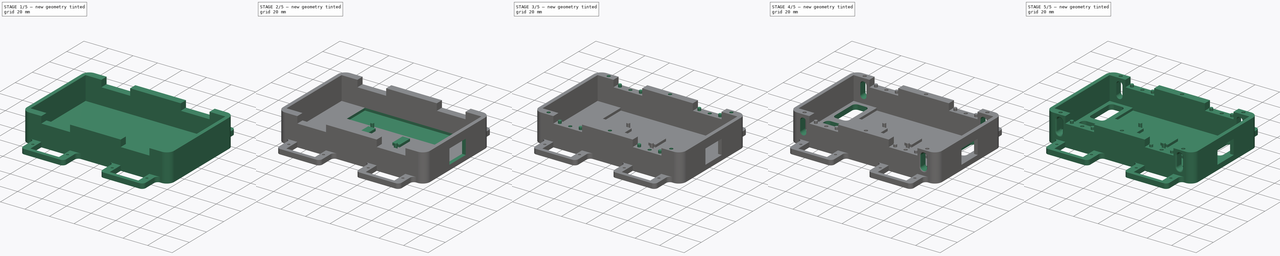
[diagram: build sequence overview — one tinted view per stage of 5, left to right]
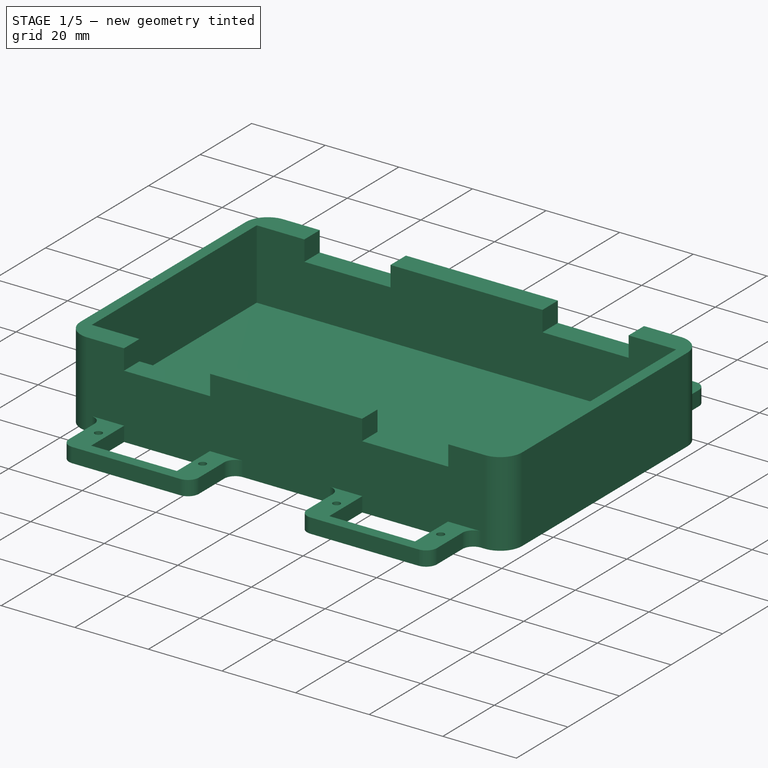
[diagram: stage 1 of 5 — iso view after this stage's code; geometry added in this stage tinted green]
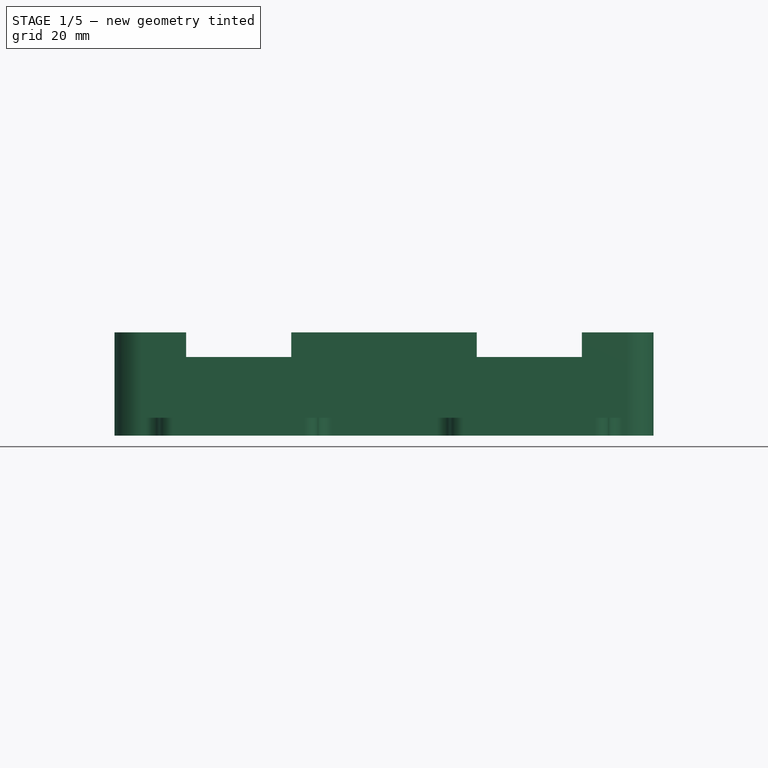
[diagram: stage 1 of 5 — front view after this stage's code; geometry added in this stage tinted green]
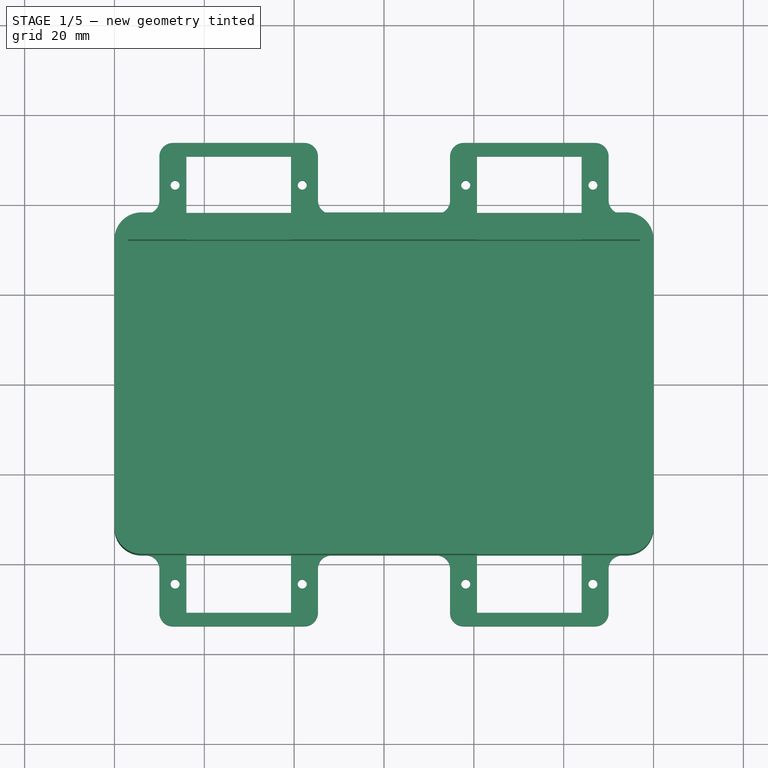
[diagram: stage 1 of 5 — top view after this stage's code; geometry added in this stage tinted green]
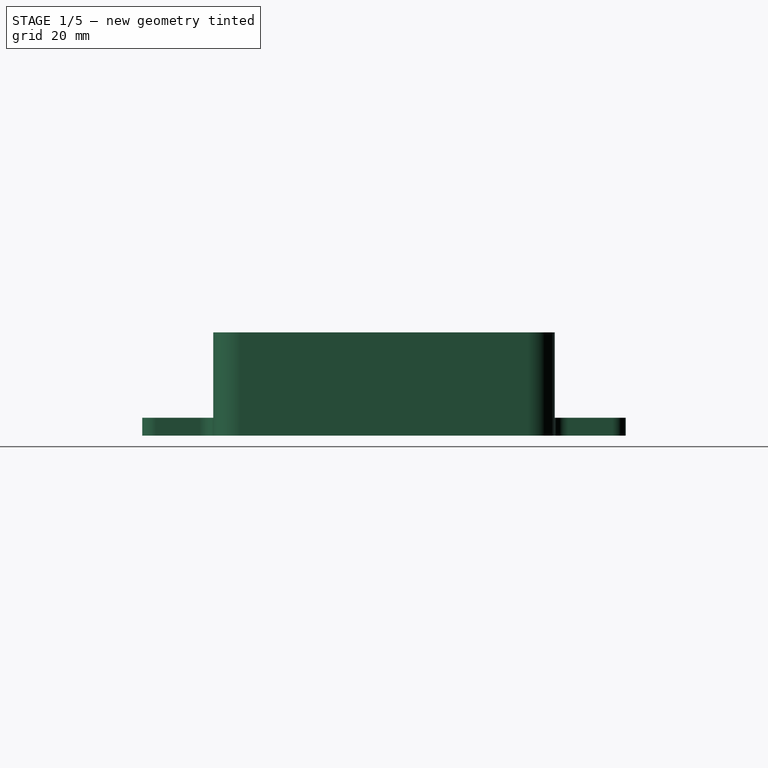
[diagram: stage 1 of 5 — right view after this stage's code; geometry added in this stage tinted green]
FCSTD DOCUMENT  (FreeCAD 0.21R33771 (Git))
Label: Шаси чертеж
License: All rights reserved
LicenseURL: https://en.wikipedia.org/wiki/All_rights_reserved
objects: Sketcher::SketchObject×13, PartDesign::Pocket×8, PartDesign::Pad×5, PartDesign::Fillet×4, PartDesign::Body×1
note: 48 computed .brp shape members not serialized (recipe doc carries the construction recipe); baked Part::Feature solids carry a one-line shape summary decoded from their .brp

FEATURE [Sketcher::SketchObject] Sketch  label="Основа чертеж"
  FullyConstrained = true
  MapMode = 5
  Support = -> [XY_Plane]
  sketch-geometry (64):
    g0: LineSegment StartX=-11.7 StartY=38 StartZ=0 EndX=11.7 EndY=38 EndZ=0
    g1: LineSegment StartX=14.7 StartY=41 StartZ=0 EndX=14.7 EndY=50.8 EndZ=0
    g2: LineSegment StartX=17.7 StartY=53.8 StartZ=0 EndX=47 EndY=53.8 EndZ=0
    g3: LineSegment StartX=50 StartY=50.8 StartZ=0 EndX=50 EndY=41 EndZ=0
    g4: LineSegment StartX=53 StartY=38 StartZ=0 EndX=54 EndY=38 EndZ=0
    g5: LineSegment StartX=60 StartY=32 StartZ=0 EndX=60 EndY=-32 EndZ=0
    g6: LineSegment StartX=54 StartY=-38 StartZ=0 EndX=53 EndY=-38 EndZ=0
    g7: LineSegment StartX=50 StartY=-41 StartZ=0 EndX=50 EndY=-50.8 EndZ=0
    g8: LineSegment StartX=47 StartY=-53.8 StartZ=0 EndX=17.7 EndY=-53.8 EndZ=0
    g9: LineSegment StartX=14.7 StartY=-50.8 StartZ=0 EndX=14.7 EndY=-41 EndZ=0
    g10: LineSegment StartX=11.7 StartY=-38 StartZ=0 EndX=-11.7 EndY=-38 EndZ=0
    g11: LineSegment StartX=-14.7 StartY=-41 StartZ=0 EndX=-14.7 EndY=-50.8 EndZ=0
    g12: LineSegment StartX=-17.7 StartY=-53.8 StartZ=0 EndX=-47 EndY=-53.8 EndZ=0
    g13: LineSegment StartX=-50 StartY=-50.8 StartZ=0 EndX=-50 EndY=-41 EndZ=0
    g14: LineSegment StartX=-53 StartY=-38 StartZ=0 EndX=-54 EndY=-38 EndZ=0
    g15: LineSegment StartX=-60 StartY=-32 StartZ=0 EndX=-60 EndY=32 EndZ=0
    g16: LineSegment StartX=-54 StartY=38 StartZ=0 EndX=-53 EndY=38 EndZ=0
    g17: LineSegment StartX=-50 StartY=41 StartZ=0 EndX=-50 EndY=50.8 EndZ=0
    g18: LineSegment StartX=-47 StartY=53.8 StartZ=0 EndX=-17.7 EndY=53.8 EndZ=0
    g19: LineSegment StartX=-14.7 StartY=50.8 StartZ=0 EndX=-14.7 EndY=41 EndZ=0
    g20: ArcOfCircle CenterX=-54 CenterY=32 CenterZ=0 NormalX=0 NormalY=0 NormalZ=1 AngleXU=0 Radius=6 StartAngle=1.5708 EndAngle=3.14159
    g21: ArcOfCircle CenterX=-54 CenterY=-32 CenterZ=0 NormalX=0 NormalY=0 NormalZ=1 AngleXU=0 Radius=6 StartAngle=3.14159 EndAngle=4.71239
    g22: ArcOfCircle CenterX=54 CenterY=32 CenterZ=0 NormalX=0 NormalY=0 NormalZ=1 AngleXU=0 Radius=6 StartAngle=0 EndAngle=1.5708
    g23: ArcOfCircle CenterX=54 CenterY=-32 CenterZ=0 NormalX=0 NormalY=0 NormalZ=1 AngleXU=0 Radius=6 StartAngle=4.71239 EndAngle=6.28319
    g24: ArcOfCircle CenterX=-47 CenterY=-50.8 CenterZ=0 NormalX=0 NormalY=0 NormalZ=1 AngleXU=0 Radius=3 StartAngle=3.14159 EndAngle=4.71239
    g25: ArcOfCircle CenterX=-17.7 CenterY=-50.8 CenterZ=0 NormalX=0 NormalY=0 NormalZ=1 AngleXU=0 Radius=3 StartAngle=4.71239 EndAngle=6.28319
    g26: ArcOfCircle CenterX=17.7 CenterY=-50.8 CenterZ=0 NormalX=0 NormalY=0 NormalZ=1 AngleXU=0 Radius=3 StartAngle=3.14159 EndAngle=4.71239
    g27: ArcOfCircle CenterX=47 CenterY=-50.8 CenterZ=0 NormalX=0 NormalY=0 NormalZ=1 AngleXU=0 Radius=3 StartAngle=4.71239 EndAngle=6.28319
    g28: ArcOfCircle CenterX=11.7 CenterY=-41 CenterZ=0 NormalX=0 NormalY=0 NormalZ=1 AngleXU=0 Radius=3 StartAngle=2e-16 EndAngle=1.5708
    g29: ArcOfCircle CenterX=-11.7 CenterY=-41 CenterZ=0 NormalX=0 NormalY=0 NormalZ=1 AngleXU=0 Radius=3 StartAngle=1.5708 EndAngle=3.14159
    g30: ArcOfCircle CenterX=-11.7 CenterY=41 CenterZ=0 NormalX=0 NormalY=0 NormalZ=1 AngleXU=0 Radius=3 StartAngle=3.14159 EndAngle=4.71239
    g31: ArcOfCircle CenterX=11.7 CenterY=41 CenterZ=0 NormalX=0 NormalY=0 NormalZ=1 AngleXU=0 Radius=3 StartAngle=4.71239 EndAngle=6.28319
    g32: ArcOfCircle CenterX=-47 CenterY=50.8 CenterZ=0 NormalX=0 NormalY=0 NormalZ=1 AngleXU=0 Radius=3 StartAngle=1.5708 EndAngle=3.14159
    g33: ArcOfCircle CenterX=-17.7 CenterY=50.8 CenterZ=0 NormalX=0 NormalY=0 NormalZ=1 AngleXU=0 Radius=3 StartAngle=-9e-16 EndAngle=1.5708
    g34: ArcOfCircle CenterX=17.7 CenterY=50.8 CenterZ=0 NormalX=0 NormalY=0 NormalZ=1 AngleXU=0 Radius=3 StartAngle=1.5708 EndAngle=3.14159
    g35: ArcOfCircle CenterX=47 CenterY=50.8 CenterZ=0 NormalX=0 NormalY=0 NormalZ=1 AngleXU=0 Radius=3 StartAngle=0 EndAngle=1.5708
    g36: ArcOfCircle CenterX=53 CenterY=-41 CenterZ=0 NormalX=0 NormalY=0 NormalZ=1 AngleXU=0 Radius=3 StartAngle=1.5708 EndAngle=3.14159
    g37: ArcOfCircle CenterX=53 CenterY=41 CenterZ=0 NormalX=0 NormalY=0 NormalZ=1 AngleXU=0 Radius=3 StartAngle=3.14159 EndAngle=4.71239
    g38: ArcOfCircle CenterX=-53 CenterY=41 CenterZ=0 NormalX=0 NormalY=0 NormalZ=1 AngleXU=0 Radius=3 StartAngle=4.71239 EndAngle=6.28319
    g39: ArcOfCircle CenterX=-53 CenterY=-41 CenterZ=0 NormalX=0 NormalY=0 NormalZ=1 AngleXU=0 Radius=3 StartAngle=0 EndAngle=1.5708
    g40: LineSegment StartX=-44 StartY=50.8 StartZ=0 EndX=-20.7 EndY=50.8 EndZ=0
    g41: LineSegment StartX=-20.7 StartY=50.8 StartZ=0 EndX=-20.7 EndY=38 EndZ=0
    g42: LineSegment StartX=-20.7 StartY=38 StartZ=0 EndX=-44 EndY=38 EndZ=0
    g43: LineSegment StartX=-44 StartY=38 StartZ=0 EndX=-44 EndY=50.8 EndZ=0
    g44: Circle CenterX=-46.5 CenterY=44.4 CenterZ=0 NormalX=0 NormalY=0 NormalZ=1 AngleXU=0 Radius=1
    g45: Circle CenterX=-18.2 CenterY=44.4 CenterZ=0 NormalX=0 NormalY=0 NormalZ=1 AngleXU=0 Radius=1
    g46: LineSegment StartX=20.7 StartY=50.8 StartZ=0 EndX=44 EndY=50.8 EndZ=0
    g47: LineSegment StartX=44 StartY=50.8 StartZ=0 EndX=44 EndY=38 EndZ=0
    g48: LineSegment StartX=44 StartY=38 StartZ=0 EndX=20.7 EndY=38 EndZ=0
    g49: LineSegment StartX=20.7 StartY=38 StartZ=0 EndX=20.7 EndY=50.8 EndZ=0
    g50: Circle CenterX=18.2 CenterY=44.4 CenterZ=0 NormalX=0 NormalY=0 NormalZ=1 AngleXU=0 Radius=1
    g51: Circle CenterX=46.5 CenterY=44.4 CenterZ=0 NormalX=0 NormalY=0 NormalZ=1 AngleXU=0 Radius=1
    g52: LineSegment StartX=20.7 StartY=-38 StartZ=0 EndX=44 EndY=-38 EndZ=0
    g53: LineSegment StartX=44 StartY=-38 StartZ=0 EndX=44 EndY=-50.8 EndZ=0
    g54: LineSegment StartX=44 StartY=-50.8 StartZ=0 EndX=20.7 EndY=-50.8 EndZ=0
    g55: LineSegment StartX=20.7 StartY=-50.8 StartZ=0 EndX=20.7 EndY=-38 EndZ=0
    g56: LineSegment StartX=-44 StartY=-38 StartZ=0 EndX=-20.7 EndY=-38 EndZ=0
    g57: LineSegment StartX=-20.7 StartY=-38 StartZ=0 EndX=-20.7 EndY=-50.8 EndZ=0
    g58: LineSegment StartX=-20.7 StartY=-50.8 StartZ=0 EndX=-44 EndY=-50.8 EndZ=0
    g59: LineSegment StartX=-44 StartY=-50.8 StartZ=0 EndX=-44 EndY=-38 EndZ=0
    g60: Circle CenterX=-46.5 CenterY=-44.4 CenterZ=0 NormalX=0 NormalY=0 NormalZ=1 AngleXU=0 Radius=1
    g61: Circle CenterX=-18.2 CenterY=-44.4 CenterZ=0 NormalX=0 NormalY=0 NormalZ=1 AngleXU=0 Radius=1
    g62: Circle CenterX=18.2 CenterY=-44.4 CenterZ=0 NormalX=0 NormalY=0 NormalZ=1 AngleXU=0 Radius=1
    g63: Circle CenterX=46.5 CenterY=-44.4 CenterZ=0 NormalX=0 NormalY=0 NormalZ=1 AngleXU=0 Radius=1
  constraints (172):
    c: Horizontal(g0)
    c: Vertical(g1)
    c: Horizontal(g2)
    c: Vertical(g5)
    c: Horizontal(g6)
    c: Vertical(g7)
    c: Horizontal(g8)
    c: Vertical(g9)
    c: Horizontal(g10)
    c: Vertical(g11)
    c: Horizontal(g12)
    c: Vertical(g13)
    c: Horizontal(g14)
    c: Vertical(g15)
    c: Horizontal(g16)
    c: Vertical(g17)
    c: Horizontal(g18)
    c: Vertical(g19)
    c: Vertical(g3)
    c: Tangent(g15,g20) = 1.5708
    c: Tangent(g16,g20) = 1.5708
    c: Tangent(g14,g21) = 1.5708
    c: Tangent(g15,g21) = 1.5708
    c: Tangent(g4,g22) = 1.5708
    c: Tangent(g5,g22) = 1.5708
    c: Tangent(g6,g23) = 1.5708
    c: Tangent(g5,g23) = 1.5708
    c: Tangent(g13,g24) = 1.5708
    c: Tangent(g12,g24) = 1.5708
    c: Tangent(g12,g25) = 1.5708
    c: Tangent(g11,g25) = 1.5708
    c: Tangent(g9,g26) = 1.5708
    c: Tangent(g8,g26) = 1.5708
    c: Tangent(g8,g27) = 1.5708
    c: Tangent(g7,g27) = 1.5708
    c: Tangent(g10,g28) = -1.5708
    c: Tangent(g9,g28) = -1.5708
    c: Tangent(g10,g29) = -1.5708
    c: Tangent(g11,g29) = -1.5708
    c: Tangent(g19,g30) = -1.5708
    c: Tangent(g0,g30) = -1.5708
    c: Tangent(g0,g31) = -1.5708
    c: Tangent(g1,g31) = -1.5708
    c: Tangent(g17,g32) = 1.5708
    c: Tangent(g18,g32) = 1.5708
    c: Tangent(g18,g33) = 1.5708
    c: Tangent(g19,g33) = 1.5708
    c: Tangent(g1,g34) = 1.5708
    c: Tangent(g2,g34) = 1.5708
    c: Tangent(g3,g35) = 1.5708
    c: Tangent(g2,g35) = 1.5708
    c: Equal(g20,g21)
    c: Equal(g21,g23)
    c: Equal(g23,g22)
    c: Radius(g22) = 6
    c: Tangent(g6,g36) = -1.5708
    c: Tangent(g7,g36) = -1.5708
    c: Tangent(g4,g37) = -1.5708
    c: Tangent(g3,g37) = -1.5708
    c: Tangent(g16,g38) = -1.5708
    c: Tangent(g17,g38) = -1.5708
    c: Tangent(g14,g39) = -1.5708
    c: Tangent(g13,g39) = -1.5708
    c: Equal(g38,g32)
    c: Equal(g32,g33)
    c: Equal(g33,g30)
    c: Equal(g30,g31)
    c: Equal(g31,g34)
    c: Equal(g34,g35)
    c: Equal(g35,g37)
    c: Equal(g37,g36)
    c: Equal(g36,g27)
    c: Equal(g27,g26)
    c: Equal(g26,g28)
    c: Equal(g28,g29)
    c: Equal(g29,g25)
    c: Equal(g25,g24)
    c: Equal(g24,g39)
    c: Radius(g38) = 3
    c: DistanceY(g10,g0) = 76
    c: DistanceX(g15,g-1) = 60
    c: DistanceX(g17,g-1) = 50
    c: DistanceY(g-1,g16) = 38
    c: DistanceY(g-1,g0) = 38
    c: Coincident(g40,g41)
    c: Coincident(g41,g42)
    c: Coincident(g42,g43)
    c: Coincident(g43,g40)
    c: Horizontal(g40)
    c: Horizontal(g42)
    c: Vertical(g41)
    c: Vertical(g43)
    c: DistanceX(g40,g40) = 23.3
    c: DistanceY(g41,g41) = 12.8
    c: DistanceX(g17,g42) = 6
    c: DistanceX(g41,g19) = 6
    c: DistanceY(g40,g18) = 3
    c: DistanceY(g42,g44) = 6.4
    c: DistanceY(g41,g45) = 6.4
    c: DistanceX(g41,g45) = 2.5
    c: DistanceX(g44,g42) = 2.5
    c: Equal(g44,g45)
    c: Radius(g44) = 1
    c: DistanceY(g0,g41) = 0
    c: DistanceX(g-1,g3) = 50
    c: Coincident(g46,g47)
    c: Coincident(g47,g48)
    c: Coincident(g48,g49)
    c: Coincident(g49,g46)
    c: Horizontal(g46)
    c: Horizontal(g48)
    c: Vertical(g47)
    c: Vertical(g49)
    c: DistanceX(g48,g48) = 23.3
    c: DistanceY(g-1,g4) = 38
    c: DistanceY(g49,g49) = 12.8
    c: DistanceY(g0,g48) = 0
    c: DistanceX(g1,g48) = 6
    c: DistanceX(g47,g3) = 6
    c: DistanceY(g46,g2) = 3
    c: Equal(g50,g51)
    c: Radius(g50) = 1
    c: DistanceY(g48,g50) = 6.4
    c: DistanceX(g50,g48) = 2.5
    c: DistanceX(g47,g51) = 2.5
    c: DistanceY(g47,g51) = 6.4
    c: Horizontal(g4)
    c: DistanceY(g6,g4) = 76
    c: DistanceX(g-1,g5) = 60
    c: Coincident(g52,g53)
    c: Coincident(g53,g54)
    c: Coincident(g54,g55)
    c: Coincident(g55,g52)
    c: Horizontal(g52)
    c: Horizontal(g54)
    c: Vertical(g53)
    c: Vertical(g55)
    c: Coincident(g56,g57)
    c: Coincident(g57,g58)
    c: Coincident(g58,g59)
    c: Coincident(g59,g56)
    c: Horizontal(g56)
    c: Horizontal(g58)
    c: Vertical(g57)
    c: Vertical(g59)
    c: Equal(g56,g52)
    c: Equal(g52,g48)
    c: Equal(g53,g57)
    c: Equal(g57,g47)
    c: DistanceY(g56,g10) = 0
    c: DistanceY(g52,g6) = 0
    c: DistanceX(g13,g-1) = 50
    c: DistanceX(g13,g56) = 6
    c: DistanceX(g56,g11) = 6
    c: DistanceY(g14,g16) = 76
    c: DistanceY(g12,g58) = 3
    c: DistanceX(g9,g52) = 6
    c: DistanceX(g52,g7) = 6
    c: DistanceY(g8,g54) = 3
    c: DistanceX(g-1,g7) = 50
    c: Equal(g60,g61)
    c: Equal(g60,g62)
    c: Equal(g60,g63)
    c: Diameter(g60) = 2
    c: DistanceY(g60,g56) = 6.4
    c: DistanceY(g61,g56) = 6.4
    c: DistanceX(g56,g61) = 2.5
    c: DistanceX(g60,g56) = 2.5
    c: DistanceY(g62,g52) = 6.4
    c: DistanceX(g62,g52) = 2.5
    c: DistanceY(g63,g52) = 6.4
    c: DistanceX(g52,g63) = 2.5
FEATURE [PartDesign::Pad] Pad  label="Основа"
  Direction = (0,0,1)
  Length = 4
  Length2 = 10
  Profile = -> Sketch
  ReferenceAxis = -> Sketch [N_Axis]
  Type = 0
FEATURE [Sketcher::SketchObject] Sketch001  label="Борд чертеж"
  FullyConstrained = true
  MapMode = 5
  Placement = pos=(0,0,4) rot=(0,0,1;0rad)
  Support = -> [Pad]
  sketch-geometry (14):
    g0: LineSegment StartX=60 StartY=-32 StartZ=0 EndX=60 EndY=32 EndZ=0
    g1: LineSegment StartX=54 StartY=38 StartZ=0 EndX=-54 EndY=38 EndZ=0
    g2: LineSegment StartX=-60 StartY=32 StartZ=0 EndX=-60 EndY=-32 EndZ=0
    g3: LineSegment StartX=-54 StartY=-38 StartZ=0 EndX=54 EndY=-38 EndZ=0
    g4: GeomPoint X=0 Y=0 Z=0
    g5: ArcOfCircle CenterX=54 CenterY=32 CenterZ=0 NormalX=0 NormalY=0 NormalZ=1 AngleXU=0 Radius=6 StartAngle=0 EndAngle=1.5708
    g6: ArcOfCircle CenterX=-54 CenterY=32 CenterZ=0 NormalX=0 NormalY=0 NormalZ=1 AngleXU=0 Radius=6 StartAngle=1.5708 EndAngle=3.14159
    g7: ArcOfCircle CenterX=54 CenterY=-32 CenterZ=0 NormalX=0 NormalY=0 NormalZ=1 AngleXU=0 Radius=6 StartAngle=4.71239 EndAngle=6.28319
    g8: ArcOfCircle CenterX=-54 CenterY=-32 CenterZ=0 NormalX=0 NormalY=0 NormalZ=1 AngleXU=0 Radius=6 StartAngle=3.14159 EndAngle=4.71239
    g9: LineSegment StartX=57 StartY=-32 StartZ=0 EndX=57 EndY=32 EndZ=0
    g10: LineSegment StartX=57 StartY=32 StartZ=0 EndX=-57 EndY=32 EndZ=0
    g11: LineSegment StartX=-57 StartY=32 StartZ=0 EndX=-57 EndY=-32 EndZ=0
    g12: LineSegment StartX=-57 StartY=-32 StartZ=0 EndX=57 EndY=-32 EndZ=0
    g13: GeomPoint X=0 Y=0 Z=0
  constraints (33):
    c: Horizontal(g1)
    c: Horizontal(g3)
    c: Vertical(g0)
    c: Vertical(g2)
    c: Coincident(g4,g-1)
    c: Tangent(g0,g5) = -1.5708
    c: Tangent(g1,g5) = -1.5708
    c: Tangent(g1,g6) = -1.5708
    c: Tangent(g2,g6) = -1.5708
    c: Tangent(g3,g7) = -1.5708
    c: Tangent(g0,g7) = -1.5708
    c: Tangent(g3,g8) = -1.5708
    c: Tangent(g2,g8) = -1.5708
    c: Equal(g8,g6)
    c: Equal(g8,g5)
    c: Equal(g8,g7)
    c: Diameter(g8) = 12
    c: DistanceX(g-1,g0) = 60
    c: DistanceX(g2,g-1) = 60
    c: DistanceY(g-1,g1) = 38
    c: DistanceY(g3,g-1) = 38
    c: Coincident(g9,g10)
    c: Coincident(g10,g11)
    c: Coincident(g11,g12)
    c: Coincident(g12,g9)
    c: Horizontal(g10)
    c: Horizontal(g12)
    c: Vertical(g9)
    c: Vertical(g11)
    c: Symmetric(g10,g9,g13)
    c: Coincident(g13,g4)
    c: DistanceY(g9,g1) = 6
    c: DistanceX(g9,g0) = 3
FEATURE [PartDesign::Pad] Pad001  label="Борд"
  BaseFeature = -> Pad
  Direction = (0,0,1)
  Length = 19
  Length2 = 10
  Profile = -> Sketch001
  ReferenceAxis = -> Sketch001 [N_Axis]
  Type = 0
FEATURE [Sketcher::SketchObject] Sketch002
  FullyConstrained = true
  MapMode = 5
  Placement = pos=(0,0,23) rot=(0,0,1;0rad)
  Support = -> [Pad001]
  sketch-geometry (16):
    g0: LineSegment StartX=-44.05 StartY=38 StartZ=0 EndX=-20.65 EndY=38 EndZ=0
    g1: LineSegment StartX=-20.65 StartY=38 StartZ=0 EndX=-20.65 EndY=32 EndZ=0
    g2: LineSegment StartX=-20.65 StartY=32 StartZ=0 EndX=-44.05 EndY=32 EndZ=0
    g3: LineSegment StartX=-44.05 StartY=32 StartZ=0 EndX=-44.05 EndY=38 EndZ=0
    g4: LineSegment StartX=20.65 StartY=38 StartZ=0 EndX=44.05 EndY=38 EndZ=0
    g5: LineSegment StartX=44.05 StartY=38 StartZ=0 EndX=44.05 EndY=32 EndZ=0
    g6: LineSegment StartX=44.05 StartY=32 StartZ=0 EndX=20.65 EndY=32 EndZ=0
    g7: LineSegment StartX=20.65 StartY=32 StartZ=0 EndX=20.65 EndY=38 EndZ=0
    g8: LineSegment StartX=-44.05 StartY=-32 StartZ=0 EndX=-20.65 EndY=-32 EndZ=0
    g9: LineSegment StartX=-20.65 StartY=-32 StartZ=0 EndX=-20.65 EndY=-38 EndZ=0
    g10: LineSegment StartX=-20.65 StartY=-38 StartZ=0 EndX=-44.05 EndY=-38 EndZ=0
    g11: LineSegment StartX=-44.05 StartY=-38 StartZ=0 EndX=-44.05 EndY=-32 EndZ=0
    g12: LineSegment StartX=20.65 StartY=-32 StartZ=0 EndX=44.05 EndY=-32 EndZ=0
    g13: LineSegment StartX=44.05 StartY=-32 StartZ=0 EndX=44.05 EndY=-38 EndZ=0
    g14: LineSegment StartX=44.05 StartY=-38 StartZ=0 EndX=20.65 EndY=-38 EndZ=0
    g15: LineSegment StartX=20.65 StartY=-38 StartZ=0 EndX=20.65 EndY=-32 EndZ=0
  constraints (46):
    c: Coincident(g0,g1)
    c: Coincident(g1,g2)
    c: Coincident(g2,g3)
    c: Coincident(g3,g0)
    c: Horizontal(g0)
    c: Horizontal(g2)
    c: Vertical(g1)
    c: Vertical(g3)
    c: Coincident(g4,g5)
    c: Coincident(g5,g6)
    c: Coincident(g6,g7)
    c: Coincident(g7,g4)
    c: Horizontal(g4)
    c: Horizontal(g6)
    c: Vertical(g5)
    c: Vertical(g7)
    c: Coincident(g8,g9)
    c: Coincident(g9,g10)
    c: Coincident(g10,g11)
    c: Coincident(g11,g8)
    c: Horizontal(g8)
    c: Horizontal(g10)
    c: Vertical(g9)
    c: Vertical(g11)
    c: Coincident(g12,g13)
    c: Coincident(g13,g14)
    c: Coincident(g14,g15)
    c: Coincident(g15,g12)
    c: Horizontal(g12)
    c: Horizontal(g14)
    c: Vertical(g13)
    c: Vertical(g15)
    c: Equal(g1,g7)
    c: Equal(g7,g11)
    c: Equal(g11,g15)
    c: DistanceY(g3,g3) = 6
    c: Equal(g0,g4)
    c: Equal(g4,g12)
    c: Equal(g12,g8)
    c: DistanceX(g0,g0) = 23.4
    c: DistanceY(g-1,g0) = 38
    c: DistanceY(g-1,g4) = 38
    c: Symmetric(g8,g1,g-1)
    c: Symmetric(g4,g13,g-1)
    c: DistanceX(g2,g-1) = 44.05
    c: DistanceX(g-1,g5) = 44.05
FEATURE [PartDesign::Pocket] Pocket  label="легла за капачките"
  BaseFeature = -> Pad001
  Direction = (0,0,-1)
  Length = 5.5
  Length2 = 5
  Profile = -> Sketch002
  ReferenceAxis = -> Sketch002 [N_Axis]
  Type = 0
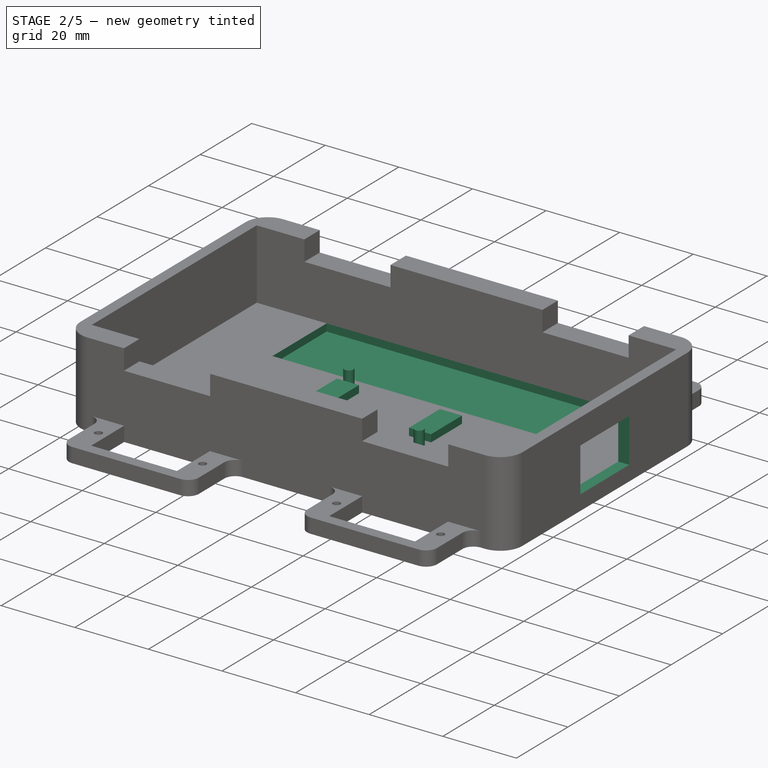
[diagram: stage 2 of 5 — iso view after this stage's code; geometry added in this stage tinted green]
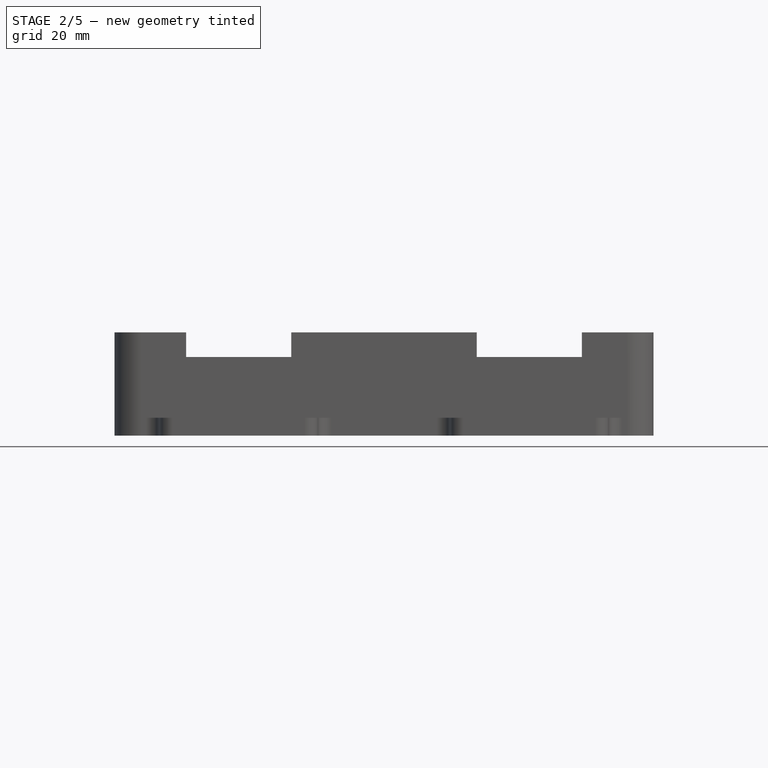
[diagram: stage 2 of 5 — front view after this stage's code; geometry added in this stage tinted green]
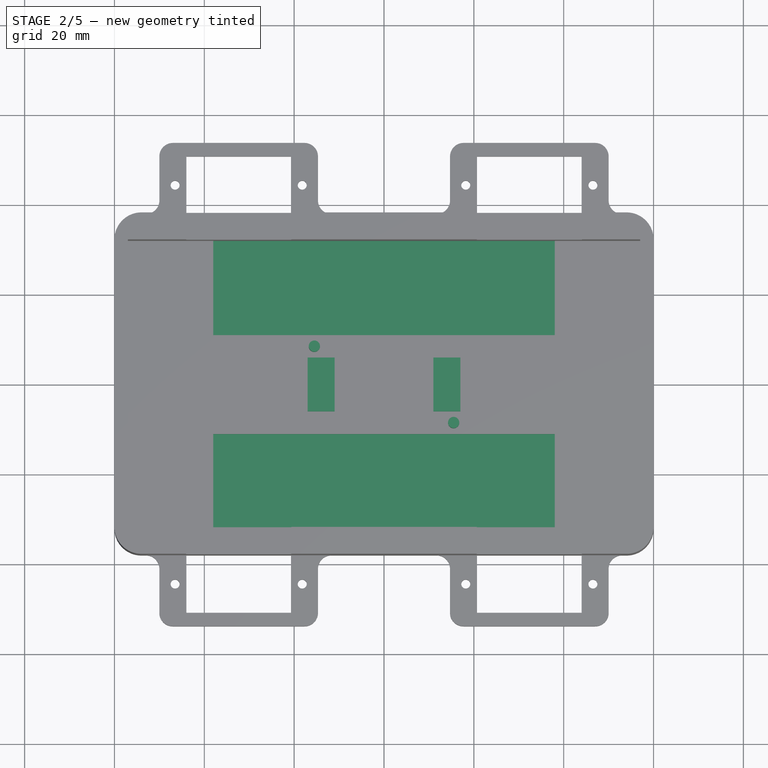
[diagram: stage 2 of 5 — top view after this stage's code; geometry added in this stage tinted green]
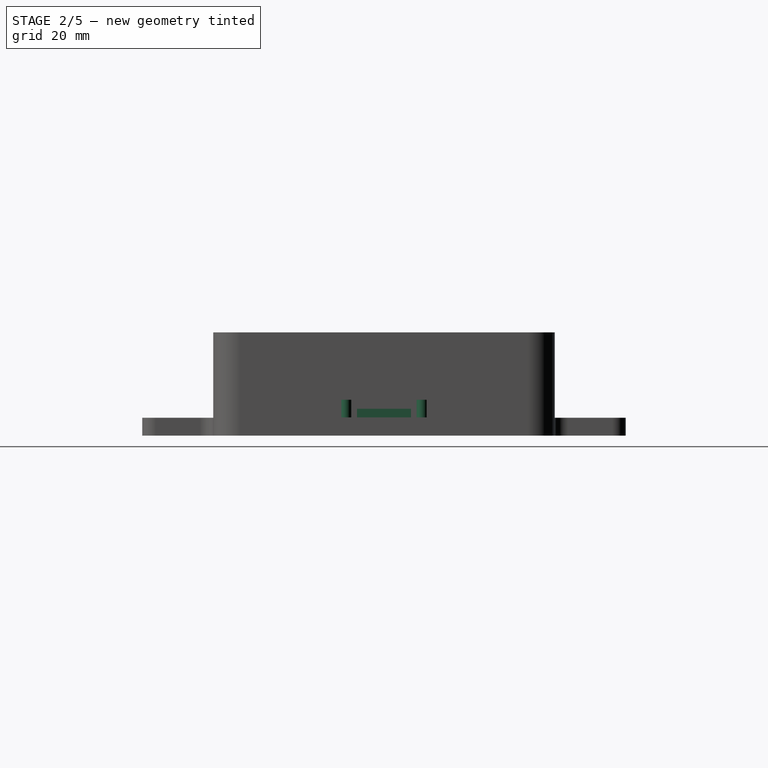
[diagram: stage 2 of 5 — right view after this stage's code; geometry added in this stage tinted green]
FEATURE [Sketcher::SketchObject] Sketch003
  FullyConstrained = true
  MapMode = 5
  Placement = pos=(0,0,4) rot=(0,0,1;0rad)
  Support = -> [Pocket]
  sketch-geometry (10):
    g0: LineSegment StartX=38 StartY=32 StartZ=0 EndX=38 EndY=11 EndZ=0
    g1: LineSegment StartX=38 StartY=11 StartZ=0 EndX=-38 EndY=11 EndZ=0
    g2: LineSegment StartX=-38 StartY=11 StartZ=0 EndX=-38 EndY=32 EndZ=0
    g3: LineSegment StartX=-38 StartY=32 StartZ=0 EndX=38 EndY=32 EndZ=0
    g4: GeomPoint X=0 Y=21.5 Z=0
    g5: LineSegment StartX=38 StartY=-11 StartZ=0 EndX=38 EndY=-32 EndZ=0
    g6: LineSegment StartX=38 StartY=-32 StartZ=0 EndX=-38 EndY=-32 EndZ=0
    g7: LineSegment StartX=-38 StartY=-32 StartZ=0 EndX=-38 EndY=-11 EndZ=0
    g8: LineSegment StartX=-38 StartY=-11 StartZ=0 EndX=38 EndY=-11 EndZ=0
    g9: GeomPoint X=0 Y=-21.5 Z=0
  constraints (26):
    c: Coincident(g0,g1)
    c: Coincident(g1,g2)
    c: Coincident(g2,g3)
    c: Coincident(g3,g0)
    c: Horizontal(g1)
    c: Horizontal(g3)
    c: Vertical(g0)
    c: Vertical(g2)
    c: Symmetric(g1,g0,g4)
    c: PointOnObject(g4,g-2)
    c: Coincident(g5,g6)
    c: Coincident(g6,g7)
    c: Coincident(g7,g8)
    c: Coincident(g8,g5)
    c: Horizontal(g6)
    c: Horizontal(g8)
    c: Vertical(g5)
    c: Vertical(g7)
    c: Symmetric(g6,g5,g9)
    c: PointOnObject(g9,g-2)
    c: DistanceY(g0,g0) = 21
    c: DistanceX(g1,g1) = 76
    c: Equal(g0,g5)
    c: Equal(g1,g8)
    c: DistanceY(g-1,g0) = 32
    c: DistanceY(g5,g-1) = 32
FEATURE [PartDesign::Pocket] Pocket001  label="легла за батериите"
  BaseFeature = -> Pocket
  Direction = (0,0,-1)
  Length = 2
  Length2 = 5
  Profile = -> Sketch003
  ReferenceAxis = -> Sketch003 [N_Axis]
  Type = 0
FEATURE [Sketcher::SketchObject] Sketch004
  FullyConstrained = true
  MapMode = 5
  Placement = pos=(60,0,0) rot=(0.57735,0.57735,0.57735;2.0944rad)
  Support = -> [Pocket001]
  sketch-geometry (5):
    g0: LineSegment StartX=9.5 StartY=4.07 StartZ=0 EndX=9.5 EndY=16.07 EndZ=0
    g1: LineSegment StartX=9.5 StartY=16.07 StartZ=0 EndX=-9.5 EndY=16.07 EndZ=0
    g2: LineSegment StartX=-9.5 StartY=16.07 StartZ=0 EndX=-9.5 EndY=4.07 EndZ=0
    g3: LineSegment StartX=-9.5 StartY=4.07 StartZ=0 EndX=9.5 EndY=4.07 EndZ=0
    g4: GeomPoint X=0 Y=10.07 Z=0
  constraints (13):
    c: Coincident(g0,g1)
    c: Coincident(g1,g2)
    c: Coincident(g2,g3)
    c: Coincident(g3,g0)
    c: Horizontal(g1)
    c: Horizontal(g3)
    c: Vertical(g0)
    c: Vertical(g2)
    c: Symmetric(g1,g0,g4)
    c: PointOnObject(g4,g-2)
    c: DistanceX(g1,g1) = 19
    c: DistanceY(g2,g2) = 12
    c: DistanceY(g-1,g0) = 4.07
FEATURE [PartDesign::Pocket] Pocket002  label="отвор за ключа"
  BaseFeature = -> Pocket001
  Direction = (-1,0,0)
  Length = 5
  Length2 = 5
  Profile = -> Sketch004
  ReferenceAxis = -> Sketch004 [N_Axis]
  Type = 0
FEATURE [Sketcher::SketchObject] Sketch005
  FullyConstrained = true
  MapMode = 5
  Placement = pos=(0,0,4) rot=(0,0,1;0rad)
  Support = -> [Pocket002]
  sketch-geometry (2):
    g0: Circle CenterX=15.5 CenterY=-8.5 CenterZ=0 NormalX=0 NormalY=0 NormalZ=1 AngleXU=0 Radius=1.25
    g1: Circle CenterX=-15.5 CenterY=8.5 CenterZ=0 NormalX=0 NormalY=0 NormalZ=1 AngleXU=0 Radius=1.25
  constraints (6):
    c: Equal(g0,g1)
    c: Diameter(g0) = 2.5
    c: DistanceX(g1,g-1) = 15.5
    c: DistanceX(g-1,g0) = 15.5
    c: DistanceY(g0,g-1) = 8.5
    c: DistanceY(g-1,g1) = 8.5
FEATURE [PartDesign::Pad] Pad002  label="щифтове за DC-DC преобраувателя"
  BaseFeature = -> Pocket002
  Direction = (0,0,1)
  Length = 4
  Length2 = 10
  Profile = -> Sketch005
  ReferenceAxis = -> Sketch005 [N_Axis]
  Type = 0
FEATURE [Sketcher::SketchObject] Sketch006
  FullyConstrained = true
  MapMode = 5
  Placement = pos=(0,0,4) rot=(0,0,1;0rad)
  Support = -> [Pad002]
  sketch-geometry (10):
    g0: LineSegment StartX=-17 StartY=-6 StartZ=0 EndX=-17 EndY=6 EndZ=0
    g1: LineSegment StartX=-17 StartY=6 StartZ=0 EndX=-11 EndY=6 EndZ=0
    g2: LineSegment StartX=-11 StartY=6 StartZ=0 EndX=-11 EndY=-6 EndZ=0
    g3: LineSegment StartX=-11 StartY=-6 StartZ=0 EndX=-17 EndY=-6 EndZ=0
    g4: GeomPoint X=-14 Y=0 Z=0
    g5: LineSegment StartX=17 StartY=-6 StartZ=0 EndX=17 EndY=6 EndZ=0
    g6: LineSegment StartX=17 StartY=6 StartZ=0 EndX=11 EndY=6 EndZ=0
    g7: LineSegment StartX=11 StartY=6 StartZ=0 EndX=11 EndY=-6 EndZ=0
    g8: LineSegment StartX=11 StartY=-6 StartZ=0 EndX=17 EndY=-6 EndZ=0
    g9: GeomPoint X=14 Y=0 Z=0
  constraints (26):
    c: Coincident(g0,g1)
    c: Coincident(g1,g2)
    c: Coincident(g2,g3)
    c: Coincident(g3,g0)
    c: Horizontal(g1)
    c: Horizontal(g3)
    c: Vertical(g0)
    c: Vertical(g2)
    c: Symmetric(g1,g0,g4)
    c: PointOnObject(g4,g-1)
    c: Coincident(g5,g6)
    c: Coincident(g6,g7)
    c: Coincident(g7,g8)
    c: Coincident(g8,g5)
    c: Horizontal(g6)
    c: Horizontal(g8)
    c: Vertical(g5)
    c: Vertical(g7)
    c: Symmetric(g6,g5,g9)
    c: PointOnObject(g9,g-1)
    c: DistanceY(g2,g2) = 12
    c: DistanceY(g7,g7) = 12
    c: DistanceX(g3,g3) = 6
    c: DistanceX(g8,g8) = 6
    c: DistanceX(g2,g-1) = 11
    c: DistanceX(g-1,g6) = 11
FEATURE [PartDesign::Pad] Pad003  label="опори за DC-DC преобраувателя"
  BaseFeature = -> Pad002
  Direction = (0,0,1)
  Length = 2
  Length2 = 10
  Profile = -> Sketch006
  ReferenceAxis = -> Sketch006 [N_Axis]
  Type = 0
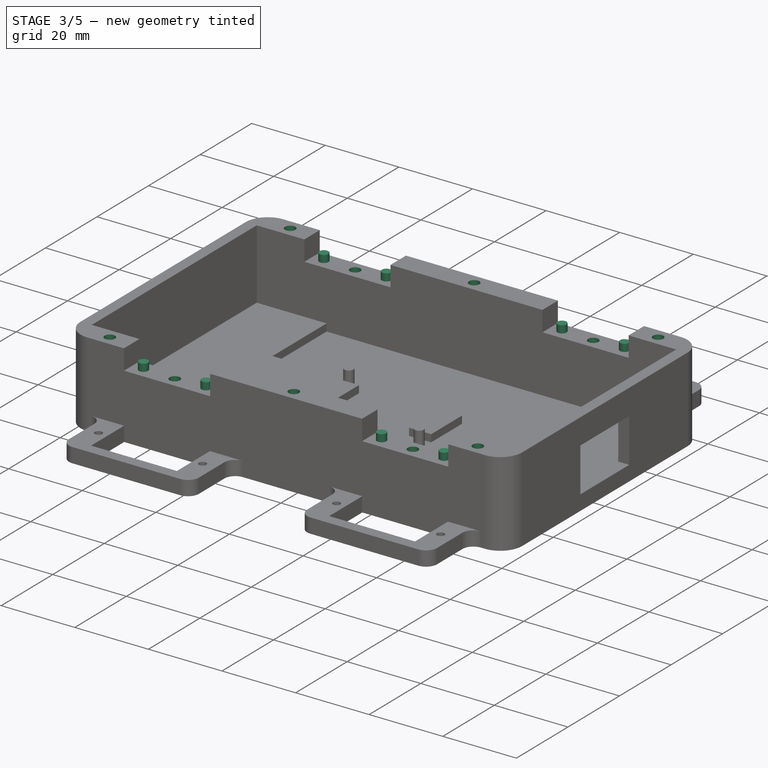
[diagram: stage 3 of 5 — iso view after this stage's code; geometry added in this stage tinted green]
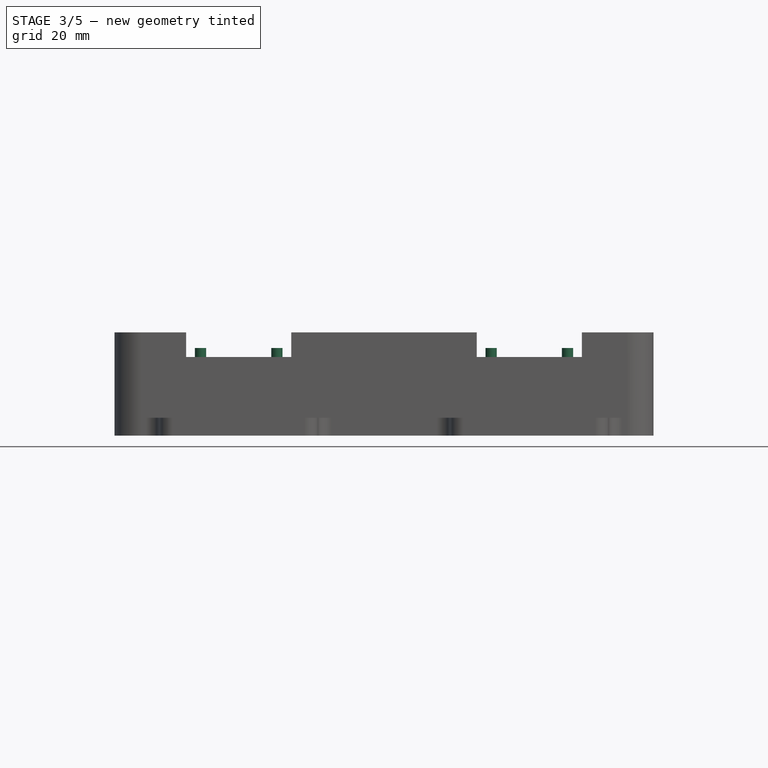
[diagram: stage 3 of 5 — front view after this stage's code; geometry added in this stage tinted green]
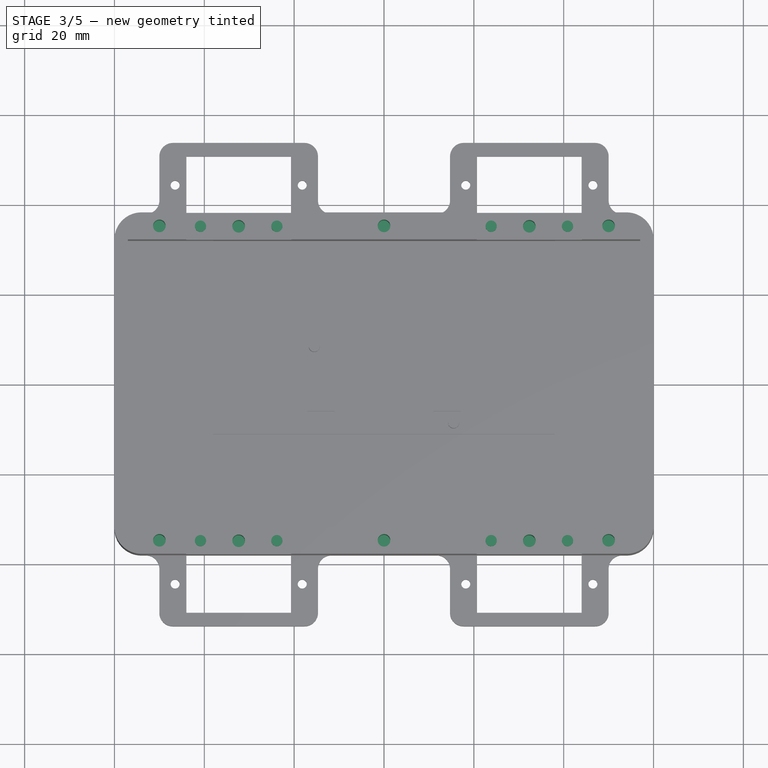
[diagram: stage 3 of 5 — top view after this stage's code; geometry added in this stage tinted green]
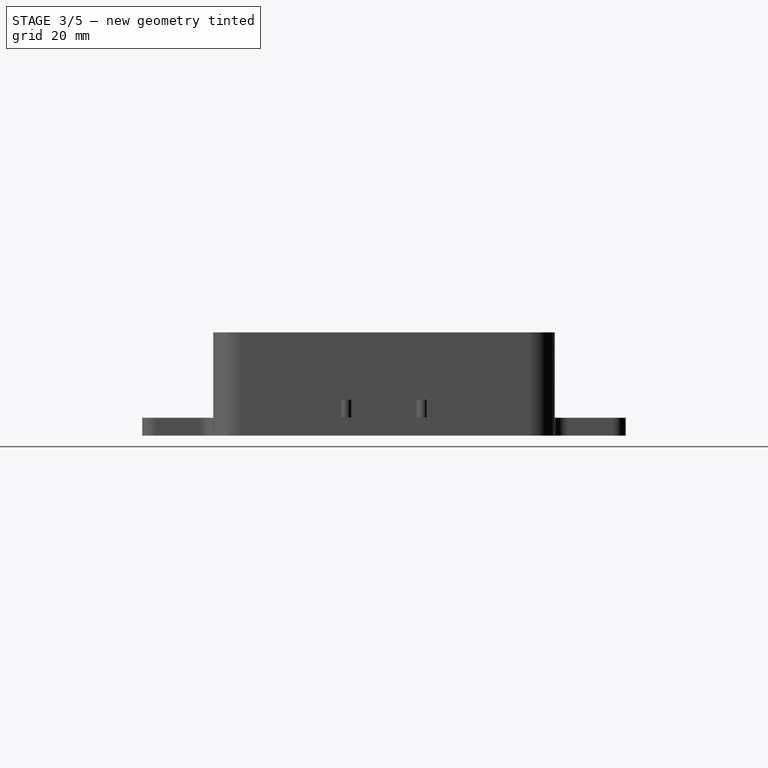
[diagram: stage 3 of 5 — right view after this stage's code; geometry added in this stage tinted green]
FEATURE [Sketcher::SketchObject] Sketch007
  FullyConstrained = true
  MapMode = 5
  Placement = pos=(0,0,17.5) rot=(0,0,1;0rad)
  Support = -> [Pad003]
  sketch-geometry (8):
    g0: Circle CenterX=-40.85 CenterY=35 CenterZ=0 NormalX=0 NormalY=0 NormalZ=1 AngleXU=0 Radius=1.25
    g1: Circle CenterX=-23.85 CenterY=35 CenterZ=0 NormalX=0 NormalY=0 NormalZ=1 AngleXU=0 Radius=1.25
    g2: Circle CenterX=23.85 CenterY=35 CenterZ=0 NormalX=0 NormalY=0 NormalZ=1 AngleXU=0 Radius=1.25
    g3: Circle CenterX=40.85 CenterY=35 CenterZ=0 NormalX=0 NormalY=0 NormalZ=1 AngleXU=0 Radius=1.25
    g4: Circle CenterX=-40.85 CenterY=-35 CenterZ=0 NormalX=0 NormalY=0 NormalZ=1 AngleXU=0 Radius=1.25
    g5: Circle CenterX=-23.85 CenterY=-35 CenterZ=0 NormalX=0 NormalY=0 NormalZ=1 AngleXU=0 Radius=1.25
    g6: Circle CenterX=23.85 CenterY=-35 CenterZ=0 NormalX=0 NormalY=0 NormalZ=1 AngleXU=0 Radius=1.25
    g7: Circle CenterX=40.85 CenterY=-35 CenterZ=0 NormalX=0 NormalY=0 NormalZ=1 AngleXU=0 Radius=1.25
  constraints (18):
    c: DistanceX(g0,g1) = 17
    c: DistanceY(g-1,g1) = 35
    c: Diameter(g1) = 2.5
    c: Equal(g1,g0)
    c: Equal(g0,g4)
    c: Equal(g4,g5)
    c: Equal(g5,g6)
    c: Equal(g6,g7)
    c: Equal(g7,g3)
    c: Equal(g3,g2)
    c: Symmetric(g1,g5,g-1)
    c: Symmetric(g1,g2,g-2)
    c: Symmetric(g2,g6,g-1)
    c: DistanceX(g0,g-1) = 40.85
    c: DistanceY(g-1,g0) = 35
    c: Symmetric(g0,g4,g-1)
    c: Symmetric(g0,g3,g-2)
    c: Symmetric(g4,g7,g-2)
FEATURE [PartDesign::Pad] Pad004  label="щифтове за капачките"
  BaseFeature = -> Pad003
  Direction = (0,0,1)
  Length = 2
  Length2 = 10
  Profile = -> Sketch007
  ReferenceAxis = -> Sketch007 [N_Axis]
  Type = 0
FEATURE [Sketcher::SketchObject] Sketch008
  FullyConstrained = true
  MapMode = 5
  Placement = pos=(0,0,17.5) rot=(0,0,1;0rad)
  Support = -> [Pad004]
  sketch-geometry (4):
    g0: Circle CenterX=-32.35 CenterY=35 CenterZ=0 NormalX=0 NormalY=0 NormalZ=1 AngleXU=0 Radius=1.4
    g1: Circle CenterX=32.35 CenterY=35 CenterZ=0 NormalX=0 NormalY=0 NormalZ=1 AngleXU=0 Radius=1.4
    g2: Circle CenterX=-32.35 CenterY=-35 CenterZ=0 NormalX=0 NormalY=0 NormalZ=1 AngleXU=0 Radius=1.4
    g3: Circle CenterX=32.35 CenterY=-35 CenterZ=0 NormalX=0 NormalY=0 NormalZ=1 AngleXU=0 Radius=1.4
  constraints (9):
    c: Equal(g3,g2)
    c: Equal(g2,g0)
    c: Equal(g0,g1)
    c: Diameter(g1) = 2.8
    c: DistanceX(g0,g-1) = 32.35
    c: DistanceY(g-1,g0) = 35
    c: Symmetric(g0,g1,g-2)
    c: Symmetric(g0,g2,g-1)
    c: Symmetric(g2,g3,g-2)
FEATURE [PartDesign::Pocket] Pocket003
  BaseFeature = -> Pad004
  Direction = (0,0,-1)
  Length = 11
  Length2 = 5
  Profile = -> Sketch008
  ReferenceAxis = -> Sketch008 [N_Axis]
  Type = 0
FEATURE [Sketcher::SketchObject] Sketch009
  FullyConstrained = false
  MapMode = 5
  Placement = pos=(0,0,23) rot=(0,0,1;0rad)
  Support = -> [Pocket003]
  sketch-geometry (6):
    g0: Circle CenterX=-50 CenterY=35 CenterZ=0 NormalX=0 NormalY=0 NormalZ=1 AngleXU=0 Radius=1.4
    g1: Circle CenterX=50 CenterY=35 CenterZ=0 NormalX=0 NormalY=0 NormalZ=1 AngleXU=0 Radius=1.4
    g2: Circle CenterX=-50 CenterY=-35 CenterZ=0 NormalX=0 NormalY=0 NormalZ=1 AngleXU=0 Radius=1.4
    g3: Circle CenterX=50 CenterY=-35 CenterZ=0 NormalX=0 NormalY=0 NormalZ=1 AngleXU=0 Radius=1.4
    g4: Circle CenterX=0 CenterY=-35 CenterZ=0 NormalX=0 NormalY=0 NormalZ=1 AngleXU=0 Radius=1.4
    g5: Circle CenterX=0 CenterY=35 CenterZ=0 NormalX=0 NormalY=0 NormalZ=1 AngleXU=0 Radius=1.4
  constraints (13):
    c: PointOnObject(g4,g-2)
    c: Equal(g2,g4)
    c: Equal(g2,g3)
    c: Equal(g2,g1)
    c: Equal(g2,g5)
    c: Equal(g2,g0)
    c: Diameter(g2) = 2.8
    c: Symmetric(g5,g4,g-1)
    c: Symmetric(g2,g0,g-1)
    c: Symmetric(g3,g2,g-2)
    c: Symmetric(g0,g1,g-2)
    c: DistanceY(g-1,g0) = 35
    c: DistanceX(g0,g-1) = 50
FEATURE [PartDesign::Pocket] Pocket004
  BaseFeature = -> Pocket003
  Direction = (0,0,-1)
  Length = 11
  Length2 = 5
  Profile = -> Sketch009
  ReferenceAxis = -> Sketch009 [N_Axis]
  Type = 0
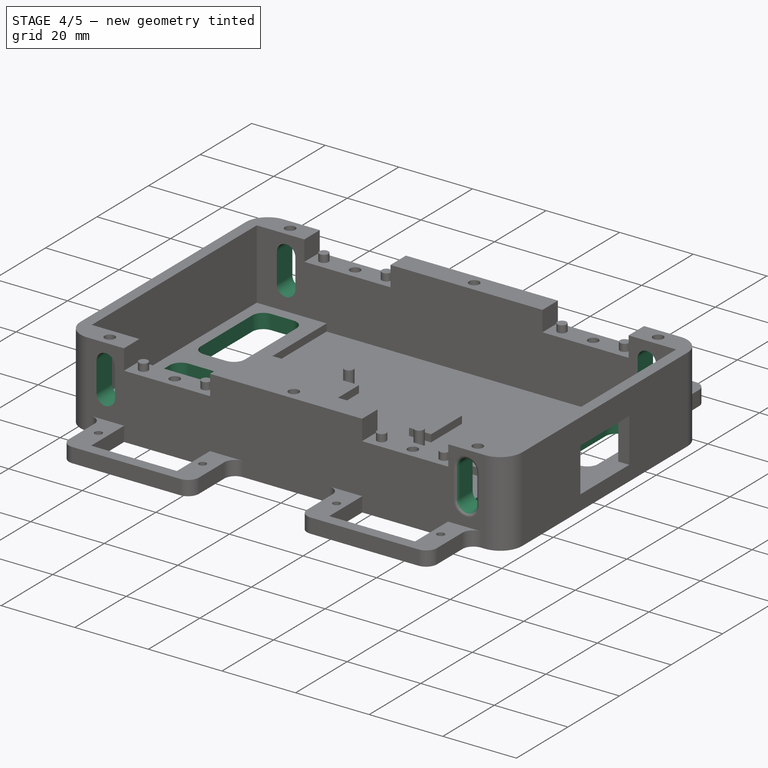
[diagram: stage 4 of 5 — iso view after this stage's code; geometry added in this stage tinted green]
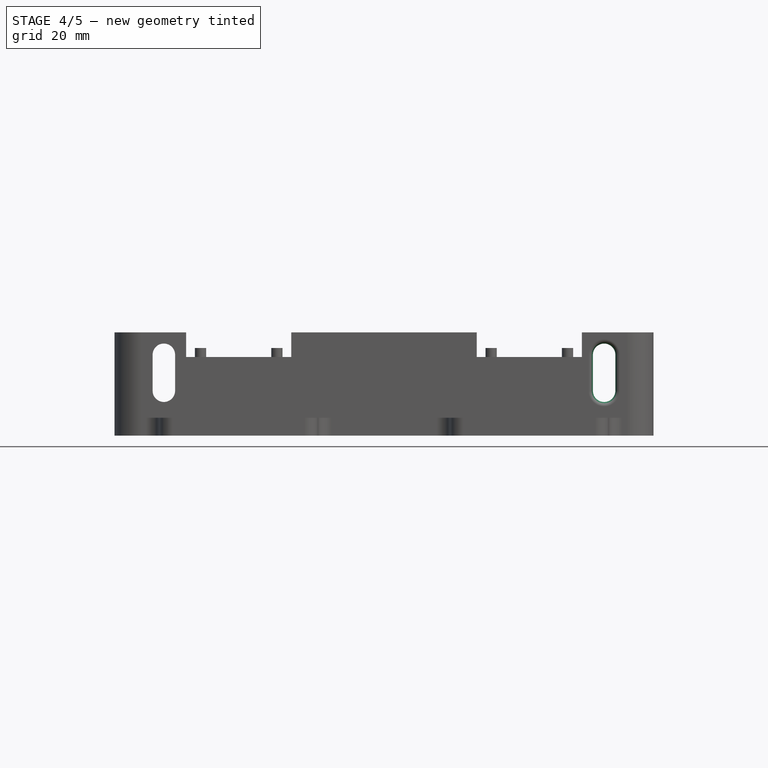
[diagram: stage 4 of 5 — front view after this stage's code; geometry added in this stage tinted green]
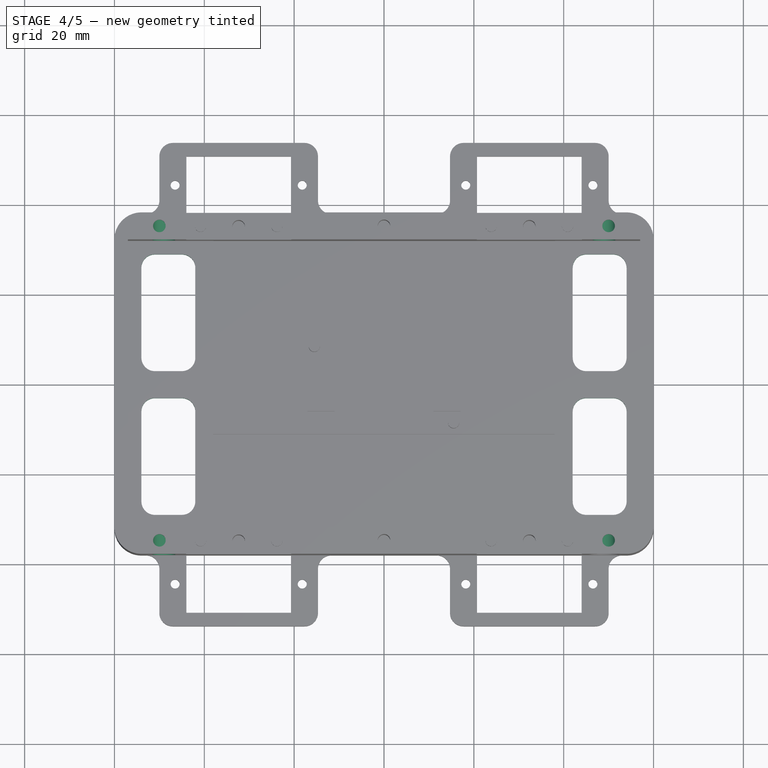
[diagram: stage 4 of 5 — top view after this stage's code; geometry added in this stage tinted green]
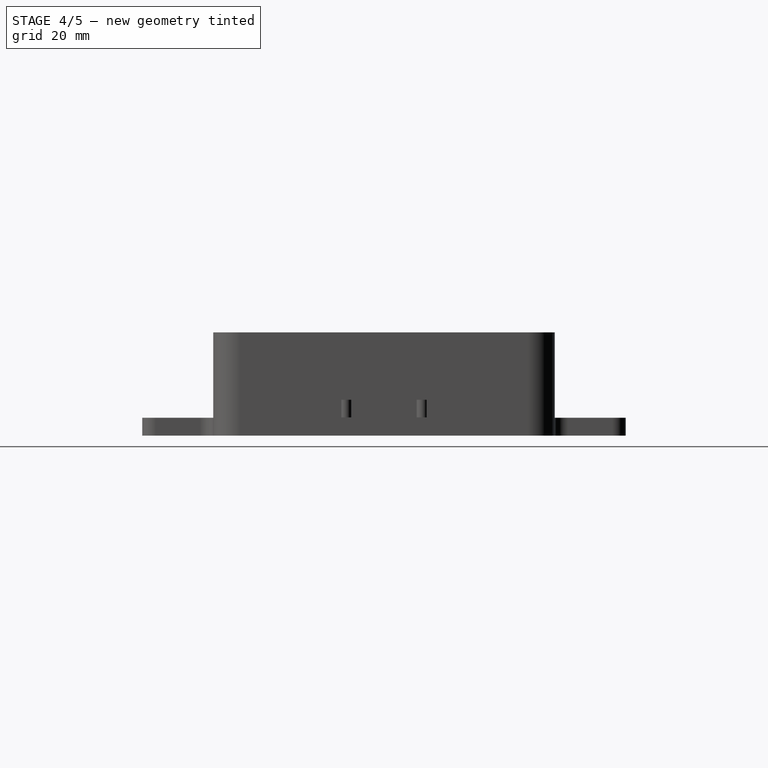
[diagram: stage 4 of 5 — right view after this stage's code; geometry added in this stage tinted green]
FEATURE [Sketcher::SketchObject] Sketch010
  FullyConstrained = true
  MapMode = 5
  Placement = pos=(0,0,4) rot=(0,0,1;0rad)
  Support = -> [Pocket004]
  sketch-geometry (40):
    g0: ArcOfCircle CenterX=-51 CenterY=26 CenterZ=0 NormalX=0 NormalY=0 NormalZ=1 AngleXU=0 Radius=3 StartAngle=1.5708 EndAngle=3.14159
    g1: LineSegment StartX=-51 StartY=29 StartZ=0 EndX=-45 EndY=29 EndZ=0
    g2: ArcOfCircle CenterX=-45 CenterY=26 CenterZ=0 NormalX=0 NormalY=0 NormalZ=1 AngleXU=0 Radius=3 StartAngle=1.9e-15 EndAngle=1.5708
    g3: LineSegment StartX=-42 StartY=26 StartZ=0 EndX=-42 EndY=6 EndZ=0
    g4: ArcOfCircle CenterX=-45 CenterY=6 CenterZ=0 NormalX=0 NormalY=0 NormalZ=1 AngleXU=0 Radius=3 StartAngle=4.71239 EndAngle=6.28319
    g5: LineSegment StartX=-45 StartY=3 StartZ=0 EndX=-51 EndY=3 EndZ=0
    g6: ArcOfCircle CenterX=-51 CenterY=6 CenterZ=0 NormalX=0 NormalY=0 NormalZ=1 AngleXU=0 Radius=3 StartAngle=3.14159 EndAngle=4.71239
    g7: LineSegment StartX=-54 StartY=6 StartZ=0 EndX=-54 EndY=26 EndZ=0
    g8: GeomPoint X=-54 Y=29 Z=0
    g9: GeomPoint X=-42 Y=3 Z=0
    g10: ArcOfCircle CenterX=-51 CenterY=-6 CenterZ=0 NormalX=0 NormalY=0 NormalZ=1 AngleXU=0 Radius=3 StartAngle=1.5708 EndAngle=3.14159
    g11: LineSegment StartX=-51 StartY=-3 StartZ=0 EndX=-45 EndY=-3 EndZ=0
    g12: ArcOfCircle CenterX=-45 CenterY=-6 CenterZ=0 NormalX=0 NormalY=0 NormalZ=1 AngleXU=0 Radius=3 StartAngle=2e-16 EndAngle=1.5708
    g13: LineSegment StartX=-42 StartY=-6 StartZ=0 EndX=-42 EndY=-26 EndZ=0
    g14: ArcOfCircle CenterX=-45 CenterY=-26 CenterZ=0 NormalX=0 NormalY=0 NormalZ=1 AngleXU=0 Radius=3 StartAngle=4.71239 EndAngle=6.28319
    g15: LineSegment StartX=-45 StartY=-29 StartZ=0 EndX=-51 EndY=-29 EndZ=0
    g16: ArcOfCircle CenterX=-51 CenterY=-26 CenterZ=0 NormalX=0 NormalY=0 NormalZ=1 AngleXU=0 Radius=3 StartAngle=3.14159 EndAngle=4.71239
    g17: LineSegment StartX=-54 StartY=-26 StartZ=0 EndX=-54 EndY=-6 EndZ=0
    g18: GeomPoint X=-54 Y=-3 Z=0
    g19: GeomPoint X=-42 Y=-29 Z=0
    g20: ArcOfCircle CenterX=45 CenterY=26 CenterZ=0 NormalX=0 NormalY=0 NormalZ=1 AngleXU=0 Radius=3 StartAngle=1.5708 EndAngle=3.14159
    g21: LineSegment StartX=45 StartY=29 StartZ=0 EndX=51 EndY=29 EndZ=0
    g22: ArcOfCircle CenterX=51 CenterY=26 CenterZ=0 NormalX=0 NormalY=0 NormalZ=1 AngleXU=0 Radius=3 StartAngle=0 EndAngle=1.5708
    g23: LineSegment StartX=54 StartY=26 StartZ=0 EndX=54 EndY=6 EndZ=0
    g24: ArcOfCircle CenterX=51 CenterY=6 CenterZ=0 NormalX=0 NormalY=0 NormalZ=1 AngleXU=0 Radius=3 StartAngle=4.71239 EndAngle=6.28319
    g25: LineSegment StartX=51 StartY=3 StartZ=0 EndX=45 EndY=3 EndZ=0
    g26: ArcOfCircle CenterX=45 CenterY=6 CenterZ=0 NormalX=0 NormalY=0 NormalZ=1 AngleXU=0 Radius=3 StartAngle=3.14159 EndAngle=4.71239
    g27: LineSegment StartX=42 StartY=6 StartZ=0 EndX=42 EndY=26 EndZ=0
    g28: GeomPoint X=42 Y=29 Z=0
    g29: GeomPoint X=54 Y=3 Z=0
    g30: ArcOfCircle CenterX=45 CenterY=-6 CenterZ=0 NormalX=0 NormalY=0 NormalZ=1 AngleXU=0 Radius=3 StartAngle=1.5708 EndAngle=3.14159
    g31: LineSegment StartX=45 StartY=-3 StartZ=0 EndX=51 EndY=-3 EndZ=0
    g32: ArcOfCircle CenterX=51 CenterY=-6 CenterZ=0 NormalX=0 NormalY=0 NormalZ=1 AngleXU=0 Radius=3 StartAngle=3e-16 EndAngle=1.5708
    g33: LineSegment StartX=54 StartY=-6 StartZ=0 EndX=54 EndY=-26 EndZ=0
    g34: ArcOfCircle CenterX=51 CenterY=-26 CenterZ=0 NormalX=0 NormalY=0 NormalZ=1 AngleXU=0 Radius=3 StartAngle=4.71239 EndAngle=6.28319
    g35: LineSegment StartX=51 StartY=-29 StartZ=0 EndX=45 EndY=-29 EndZ=0
    g36: ArcOfCircle CenterX=45 CenterY=-26 CenterZ=0 NormalX=0 NormalY=0 NormalZ=1 AngleXU=0 Radius=3 StartAngle=3.14159 EndAngle=4.71239
    g37: LineSegment StartX=42 StartY=-26 StartZ=0 EndX=42 EndY=-6 EndZ=0
    g38: GeomPoint X=42 Y=-3 Z=0
    g39: GeomPoint X=54 Y=-29 Z=0
  constraints (94):
    c: Tangent(g0,g1) = 1.5708
    c: Tangent(g1,g2) = 1.5708
    c: Tangent(g2,g3) = 1.5708
    c: Tangent(g3,g4) = 1.5708
    c: Tangent(g4,g5) = 1.5708
    c: Tangent(g5,g6) = 1.5708
    c: Tangent(g6,g7) = 1.5708
    c: Tangent(g7,g0) = 1.5708
    c: Horizontal(g1)
    c: Horizontal(g5)
    c: Vertical(g3)
    c: Vertical(g7)
    c: Equal(g0,g2)
    c: Equal(g2,g4)
    c: Equal(g4,g6)
    c: PointOnObject(g8,g1)
    c: PointOnObject(g8,g7)
    c: PointOnObject(g9,g3)
    c: PointOnObject(g9,g5)
    c: Tangent(g10,g11) = 1.5708
    c: Tangent(g11,g12) = 1.5708
    c: Tangent(g12,g13) = 1.5708
    c: Tangent(g13,g14) = 1.5708
    c: Tangent(g14,g15) = 1.5708
    c: Tangent(g15,g16) = 1.5708
    c: Tangent(g16,g17) = 1.5708
    c: Tangent(g17,g10) = 1.5708
    c: Horizontal(g11)
    c: Horizontal(g15)
    c: Vertical(g13)
    c: Vertical(g17)
    c: Equal(g10,g12)
    c: Equal(g12,g14)
    c: Equal(g14,g16)
    c: PointOnObject(g18,g11)
    c: PointOnObject(g18,g17)
    c: PointOnObject(g19,g13)
    c: PointOnObject(g19,g15)
    c: Tangent(g20,g21) = 1.5708
    c: Tangent(g21,g22) = 1.5708
    c: Tangent(g22,g23) = 1.5708
    c: Tangent(g23,g24) = 1.5708
    c: Tangent(g24,g25) = 1.5708
    c: Tangent(g25,g26) = 1.5708
    c: Tangent(g26,g27) = 1.5708
    c: Tangent(g27,g20) = 1.5708
    c: Horizontal(g21)
    c: Horizontal(g25)
    c: Vertical(g23)
    c: Vertical(g27)
    c: Equal(g20,g22)
    c: Equal(g22,g24)
    c: Equal(g24,g26)
    c: PointOnObject(g28,g21)
    c: PointOnObject(g28,g27)
    c: PointOnObject(g29,g23)
    c: PointOnObject(g29,g25)
    c: Tangent(g30,g31) = 1.5708
    c: Tangent(g31,g32) = 1.5708
    c: Tangent(g32,g33) = 1.5708
    c: Tangent(g33,g34) = 1.5708
    c: Tangent(g34,g35) = 1.5708
    c: Tangent(g35,g36) = 1.5708
    c: Tangent(g36,g37) = 1.5708
    c: Tangent(g37,g30) = 1.5708
    c: Horizontal(g31)
    c: Horizontal(g35)
    c: Vertical(g33)
    c: Vertical(g37)
    c: Equal(g30,g32)
    c: Equal(g32,g34)
    c: Equal(g34,g36)
    c: PointOnObject(g38,g31)
    c: PointOnObject(g38,g37)
    c: PointOnObject(g39,g33)
    c: PointOnObject(g39,g35)
    c: Diameter(g0) = 6
    c: Diameter(g10) = 6
    c: Diameter(g20) = 6
    c: Diameter(g30) = 6
    c: DistanceX(g1,g1) = 6
    c: DistanceX(g11,g11) = 6
    c: DistanceX(g31,g31) = 6
    c: DistanceX(g21,g21) = 6
    c: DistanceY(g7,g7) = 20
    c: DistanceY(g17,g17) = 20
    c: DistanceY(g27,g27) = 20
    c: DistanceY(g37,g37) = 20
    c: DistanceX(g10,g-1) = 54
    c: DistanceX(g0,g-1) = 54
    c: Symmetric(g0,g22,g-2)
    c: Symmetric(g13,g36,g-2)
    c: DistanceY(g14,g-1) = 29
    c: DistanceY(g-1,g1) = 29
FEATURE [PartDesign::Pocket] Pocket005
  BaseFeature = -> Pocket004
  Direction = (0,0,-1)
  Length = 5
  Length2 = 5
  Profile = -> Sketch010
  ReferenceAxis = -> Sketch010 [N_Axis]
  Type = 0
FEATURE [Sketcher::SketchObject] Sketch011
  FullyConstrained = true
  MapMode = 5
  Placement = pos=(0,0,0) rot=(1,0,0;3.14159rad)
  Support = -> [Pocket005]
  sketch-geometry (4):
    g0: Circle CenterX=-27 CenterY=35 CenterZ=0 NormalX=0 NormalY=0 NormalZ=1 AngleXU=0 Radius=1.4
    g1: Circle CenterX=27 CenterY=35 CenterZ=0 NormalX=0 NormalY=0 NormalZ=1 AngleXU=0 Radius=1.4
    g2: Circle CenterX=-27 CenterY=-35 CenterZ=0 NormalX=0 NormalY=0 NormalZ=1 AngleXU=0 Radius=1.4
    g3: Circle CenterX=27 CenterY=-35 CenterZ=0 NormalX=0 NormalY=0 NormalZ=1 AngleXU=0 Radius=1.4
  constraints (9):
    c: Equal(g3,g2)
    c: Equal(g3,g0)
    c: Equal(g3,g1)
    c: Diameter(g3) = 2.8
    c: Symmetric(g3,g2,g-2)
    c: Symmetric(g0,g2,g-1)
    c: Symmetric(g0,g1,g-2)
    c: DistanceY(g-1,g0) = 35
    c: DistanceX(g0,g-1) = 27
FEATURE [PartDesign::Pocket] Pocket006
  BaseFeature = -> Pocket005
  Direction = (0,0,1)
  Length = 11
  Length2 = 5
  Profile = -> Sketch011
  ReferenceAxis = -> Sketch011 [N_Axis]
  Type = 0
FEATURE [Sketcher::SketchObject] Sketch012
  FullyConstrained = true
  MapMode = 5
  Placement = pos=(0,-38,0) rot=(1,0,0;1.5708rad)
  Support = -> [Pocket006]
  sketch-geometry (8):
    g0: ArcOfCircle CenterX=49 CenterY=18 CenterZ=0 NormalX=0 NormalY=0 NormalZ=1 AngleXU=0 Radius=2.5 StartAngle=-8e-15 EndAngle=3.14159
    g1: ArcOfCircle CenterX=49 CenterY=10 CenterZ=0 NormalX=0 NormalY=0 NormalZ=1 AngleXU=0 Radius=2.5 StartAngle=3.14159 EndAngle=6.28319
    g2: LineSegment StartX=46.5 StartY=18 StartZ=0 EndX=46.5 EndY=10 EndZ=0
    g3: LineSegment StartX=51.5 StartY=10 StartZ=0 EndX=51.5 EndY=18 EndZ=0
    g4: ArcOfCircle CenterX=-49 CenterY=18 CenterZ=0 NormalX=0 NormalY=0 NormalZ=1 AngleXU=0 Radius=2.5 StartAngle=1.012e-13 EndAngle=3.14159
    g5: ArcOfCircle CenterX=-49 CenterY=10 CenterZ=0 NormalX=0 NormalY=0 NormalZ=1 AngleXU=0 Radius=2.5 StartAngle=3.14159 EndAngle=6.28319
    g6: LineSegment StartX=-51.5 StartY=18 StartZ=0 EndX=-51.5 EndY=10 EndZ=0
    g7: LineSegment StartX=-46.5 StartY=10 StartZ=0 EndX=-46.5 EndY=18 EndZ=0
  constraints (20):
    c: Tangent(g0,g2) = -1.5708
    c: Tangent(g2,g1) = -1.5708
    c: Tangent(g1,g3) = -1.5708
    c: Tangent(g3,g0) = -1.5708
    c: Equal(g0,g1)
    c: Tangent(g4,g6) = -1.5708
    c: Tangent(g6,g5) = -1.5708
    c: Tangent(g5,g7) = -1.5708
    c: Tangent(g7,g4) = -1.5708
    c: Equal(g4,g5)
    c: Vertical(g6)
    c: DistanceY(g5,g4) = 8
    c: Diameter(g5) = 5
    c: DistanceX(g4,g-1) = 49
    c: DistanceY(g-1,g5) = 10
    c: Equal(g5,g1)
    c: Equal(g2,g7)
    c: DistanceX(g-1,g0) = 46.5
    c: Vertical(g2)
    c: DistanceY(g-1,g1) = 10
FEATURE [PartDesign::Pocket] Pocket007
  BaseFeature = -> Pocket006
  Direction = (0,1,-2e-16)
  Length = 77
  Length2 = 5
  Profile = -> Sketch012
  ReferenceAxis = -> Sketch012 [N_Axis]
  Type = 0
FEATURE [PartDesign::Fillet] Fillet
  Base = -> Pocket007 [Edge348]
  BaseFeature = -> Pocket007
  Radius = 1
  SupportTransform = false
  UseAllEdges = false
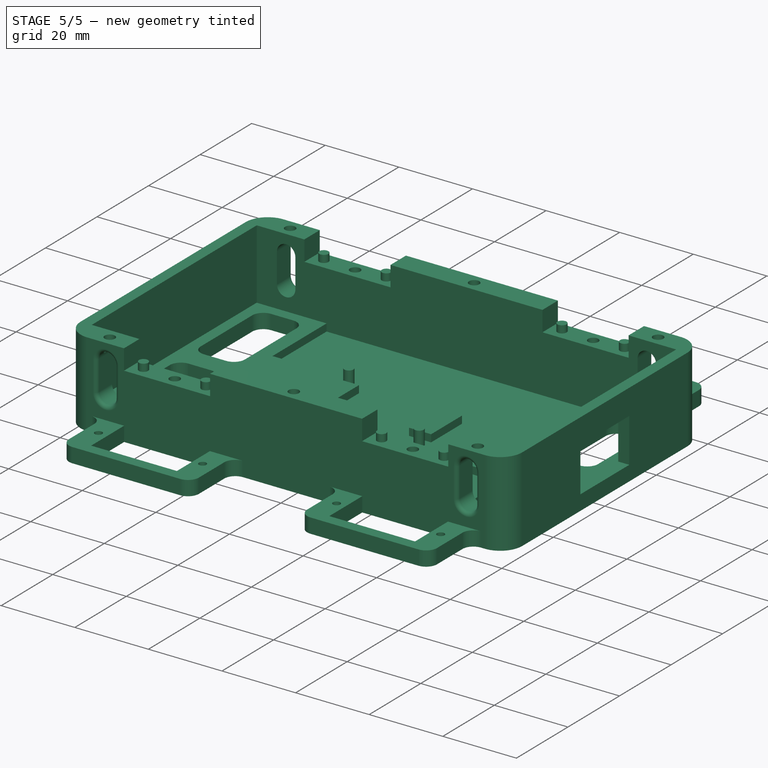
[diagram: stage 5 of 5 — iso view after this stage's code; geometry added in this stage tinted green]
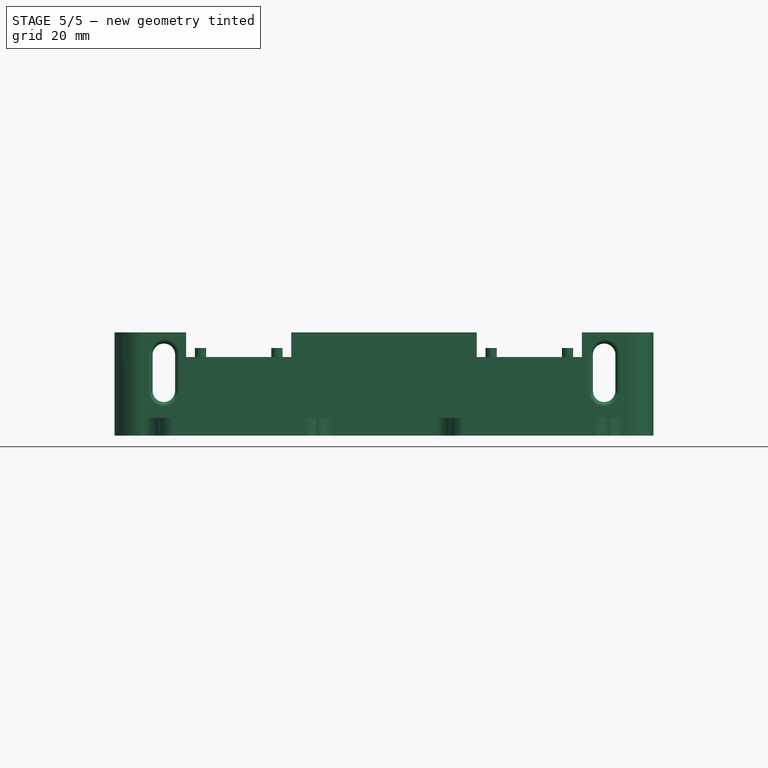
[diagram: stage 5 of 5 — front view after this stage's code; geometry added in this stage tinted green]
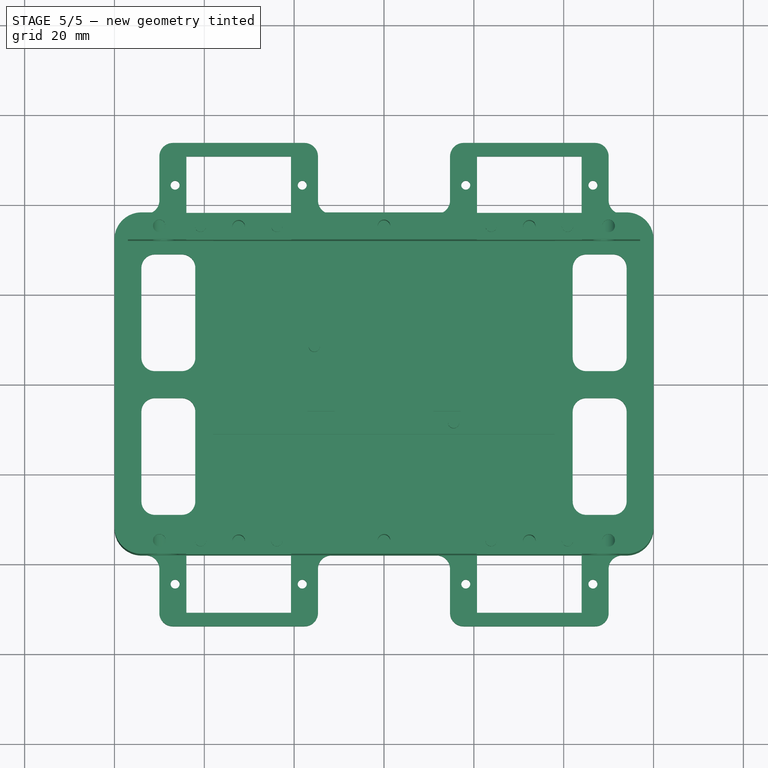
[diagram: stage 5 of 5 — top view after this stage's code; geometry added in this stage tinted green]
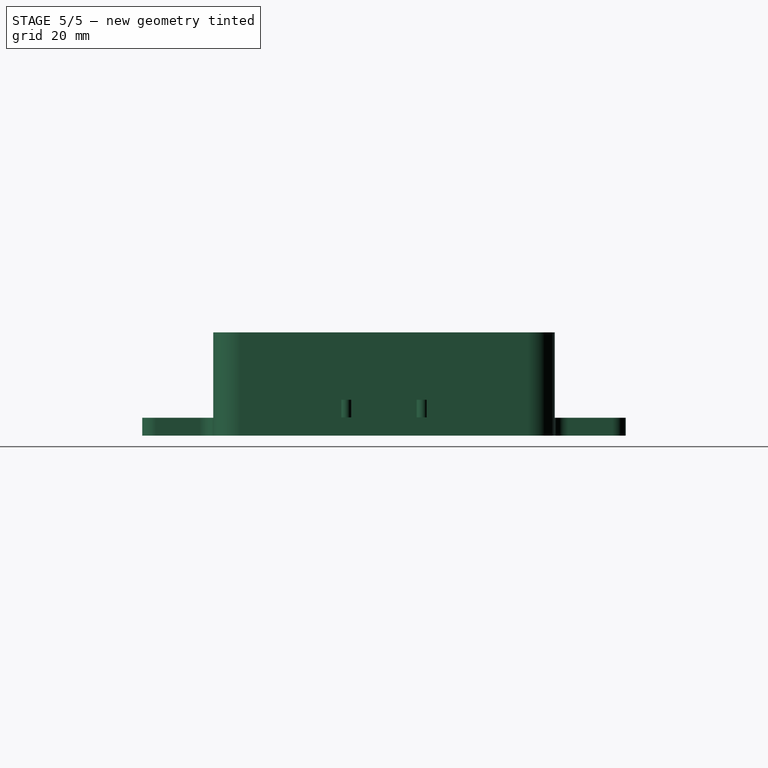
[diagram: stage 5 of 5 — right view after this stage's code; geometry added in this stage tinted green]
FEATURE [PartDesign::Fillet] Fillet001
  Base = -> Fillet [Edge25]
  BaseFeature = -> Fillet
  Radius = 1
  SupportTransform = false
  UseAllEdges = false
FEATURE [PartDesign::Fillet] Fillet002
  Base = -> Fillet001 [Edge285]
  BaseFeature = -> Fillet001
  Radius = 1
  SupportTransform = false
  UseAllEdges = false
FEATURE [PartDesign::Fillet] Fillet003
  Base = -> Fillet002 [Edge26]
  BaseFeature = -> Fillet002
  Radius = 1
  SupportTransform = false
  UseAllEdges = false
FEATURE [PartDesign::Body] Body
  Group = -> [Sketch,Pad,Sketch001,Pad001,Sketch002,Pocket,Sketch003,Pocket001,Sketch004,Pocket002,Sketch005,Pad002,Sketch006,Pad003,Sketch007,Pad004,Sketch008,Pocket003,Sketch009,Pocket004,Sketch010,Pocket005,Sketch011,Pocket006,Sketch012,Pocket007,Fillet,Fillet001,Fillet002,Fillet003]
  Origin = -> Origin
  Tip = -> Fillet003
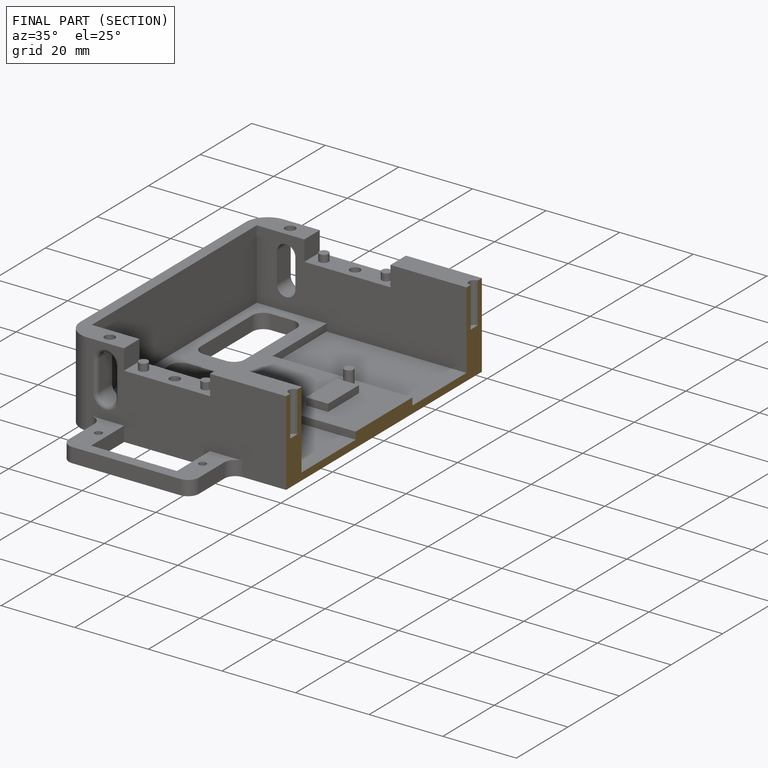
[diagram: finished part — half-section view (interior)]
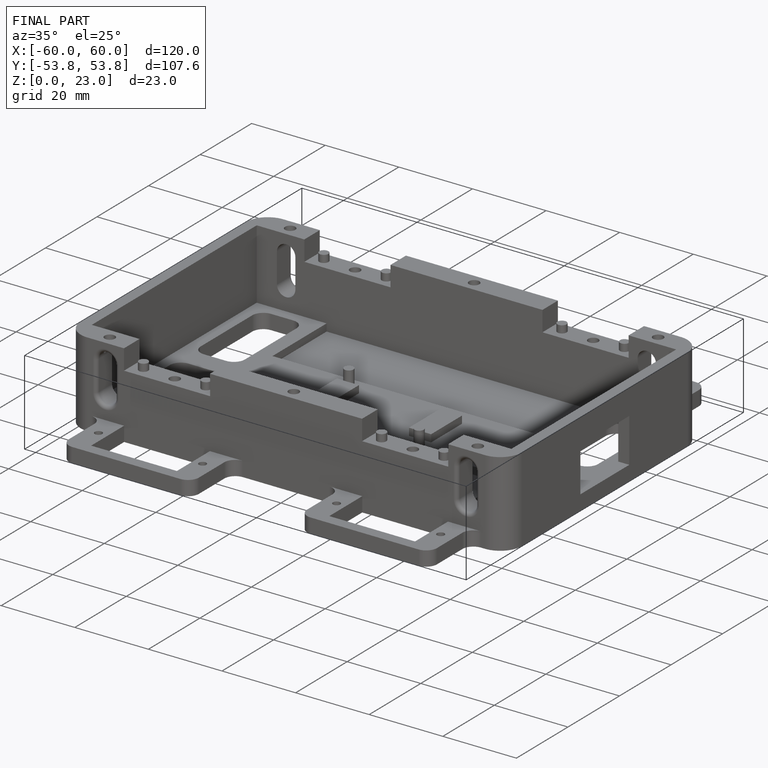
[diagram: finished part — iso view with bounding-box wireframe]
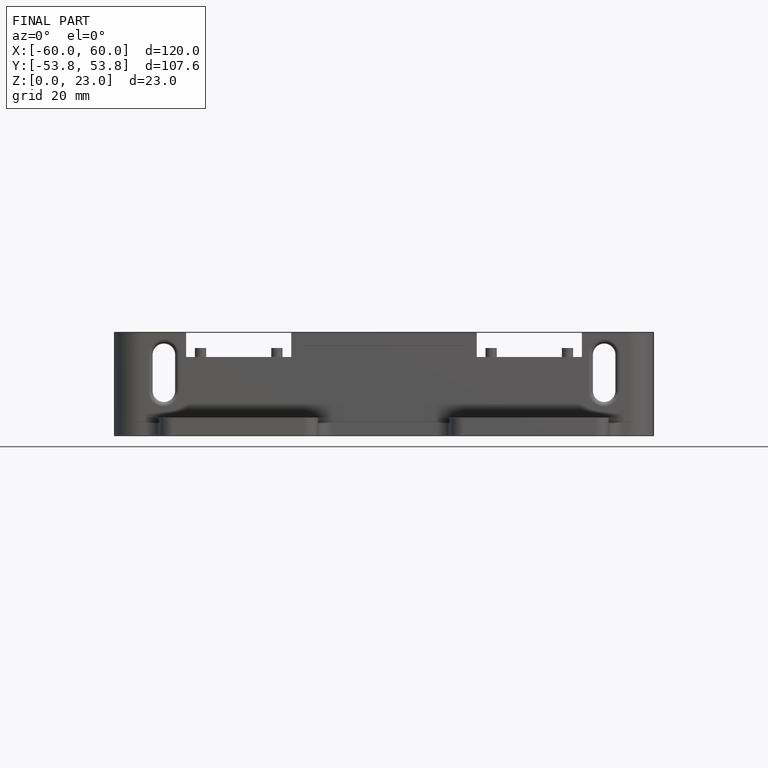
[diagram: finished part — front view with bounding-box wireframe]
